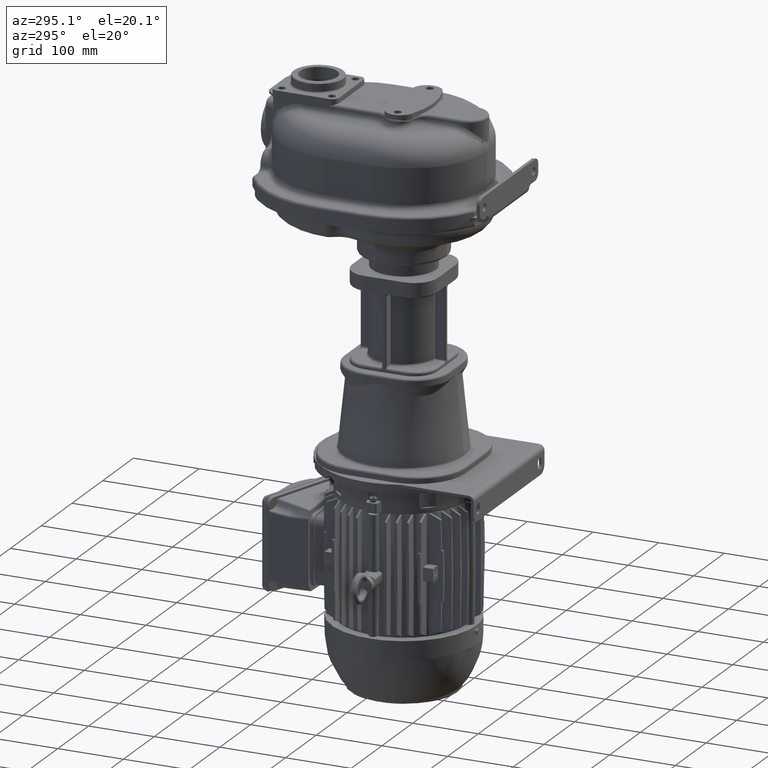
[diagram: clean part render]
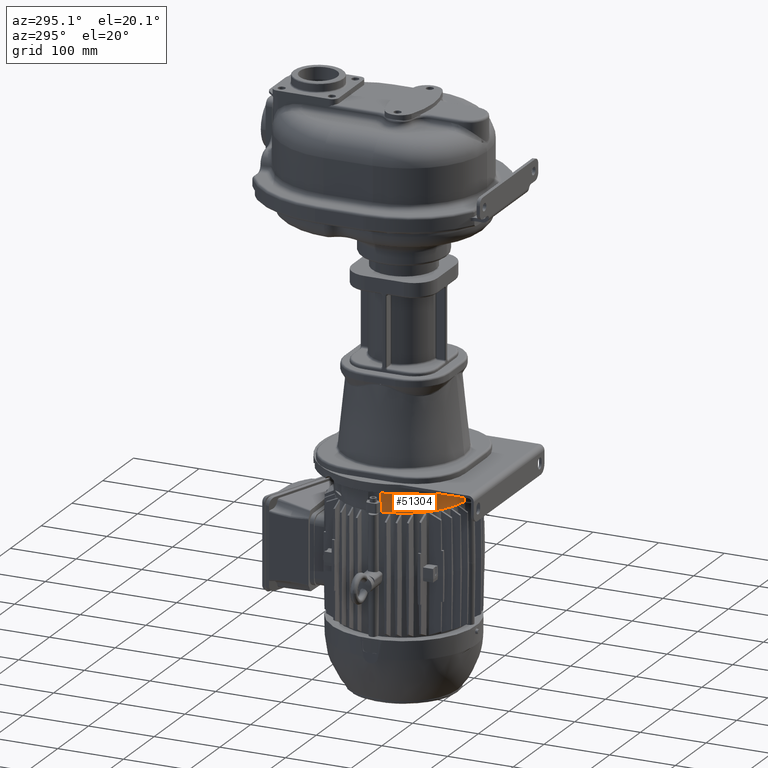
[diagram: same view with one face highlighted and labeled with its STEP entity id]
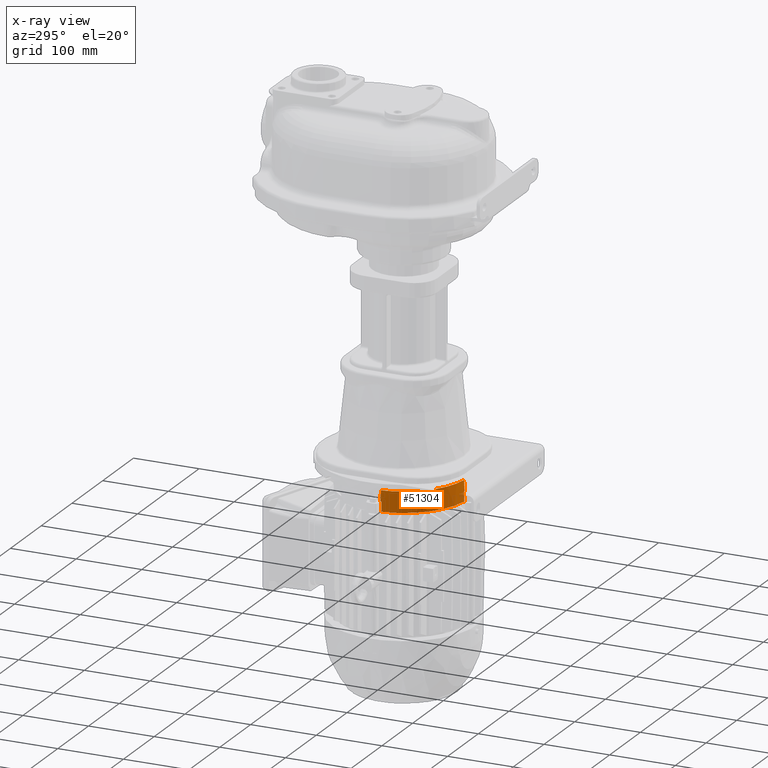
[diagram: x-ray of the same camera — body ghosted, the highlighted face saturated]
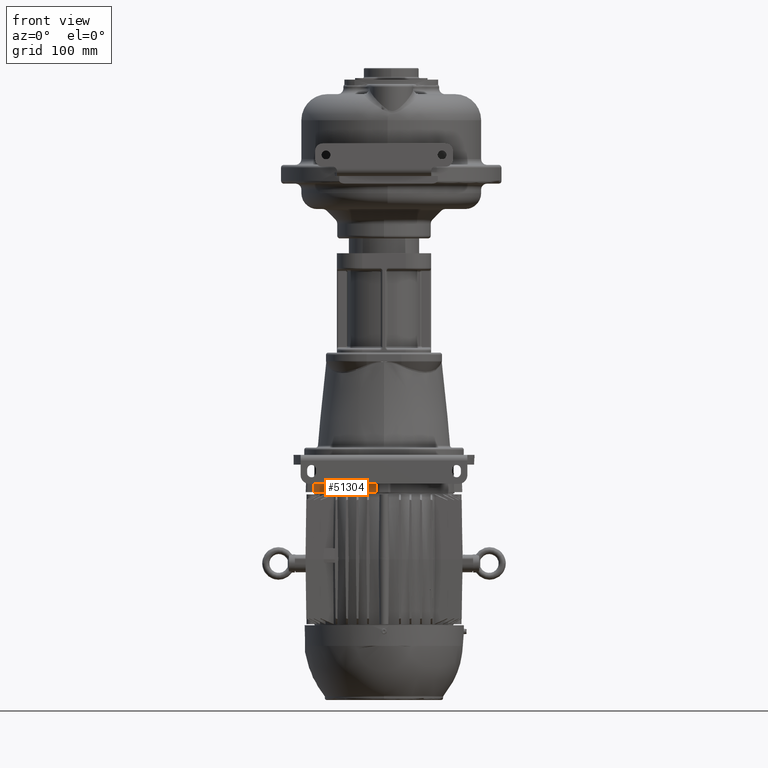
[diagram: same view with one face highlighted and labeled with its STEP entity id]
A machine part, auxiliary view. The second image highlights one B-rep face of the part: STEP entity #51304.
The next image is the same camera in x-ray: the body ghosted, the highlighted face saturated — about 1% of this face is hidden behind the body in this view.
A second angle (front view) of the same face is appended — the face is thin or edge-on in the first view.
In plain terms, the highlighted conical surface has half-angle 2 deg.
Its self-contained STEP definition (entity closure, byte-faithful):
#4994=CARTESIAN_POINT('',(-5.893369132108E1,8.369046011874E1,-4.34E2));
#4995=CARTESIAN_POINT('',(-5.901781148508E1,8.362805024004E1,
-4.368868614281E2));
#4996=CARTESIAN_POINT('',(-5.918511684592E1,8.350416939343E1,
-4.426236660805E2));
#4997=CARTESIAN_POINT('',(-5.943033284510E1,8.332329628055E1,
-4.510182601169E2));
#4998=CARTESIAN_POINT('',(-5.959581330015E1,8.320170700081E1,
-4.566739640893E2));
#4999=CARTESIAN_POINT('',(-5.967857013990E1,8.314102115272E1,-4.595E2));
#5001=CARTESIAN_POINT('',(0.E0,1.6E2,-4.34E2));
#5002=DIRECTION('',(0.E0,0.E0,-1.E0));
#5003=DIRECTION('',(-9.916516912608E-2,-9.950709870317E-1,0.E0));
#5004=AXIS2_PLACEMENT_3D('',#5001,#5002,#5003);
#5006=CARTESIAN_POINT('',(-9.376115186848E0,6.346059675055E1,-4.505E2));
#5007=CARTESIAN_POINT('',(-9.396501921736E0,6.352525982065E1,
-4.487133983074E2));
#5008=CARTESIAN_POINT('',(-9.437405277568E0,6.365571303007E1,
-4.451090546779E2));
#5009=CARTESIAN_POINT('',(-9.499115388688E0,6.385473258663E1,
-4.396102641616E2));
#5010=CARTESIAN_POINT('',(-9.540503278169E0,6.398972172740E1,
-4.358805954802E2));
#5011=CARTESIAN_POINT('',(-9.561253345400E0,6.405778674596E1,-4.34E2));
#5013=CARTESIAN_POINT('',(-1.089766451308E1,6.311093504342E1,-4.65E2));
#5014=CARTESIAN_POINT('',(-1.085308072980E1,6.316275254568E1,
-4.633827394132E2));
#5015=CARTESIAN_POINT('',(-1.076403887556E1,6.326630354086E1,
-4.601523181492E2));
#5016=CARTESIAN_POINT('',(-1.063085365457E1,6.342137680403E1,
-4.553190065989E2));
#5017=CARTESIAN_POINT('',(-1.054231398047E1,6.352459112379E1,
-4.521049711931E2));
#5018=CARTESIAN_POINT('',(-1.049810683230E1,6.357615611948E1,-4.505E2));
#5020=CARTESIAN_POINT('',(-9.642384388052E1,1.495018931677E2,-4.505E2));
#5021=CARTESIAN_POINT('',(-9.647540887644E1,1.494576860193E2,
-4.521049712003E2));
#5022=CARTESIAN_POINT('',(-9.657862319650E1,1.493691463450E2,
-4.553190066156E2));
#5023=CARTESIAN_POINT('',(-9.673369645968E1,1.492359611240E2,
-4.601523181659E2));
#5024=CARTESIAN_POINT('',(-9.683724745455E1,1.491469192700E2,
-4.633827394204E2));
#5025=CARTESIAN_POINT('',(-9.688906495658E1,1.491023354869E2,-4.65E2));
#5027=CARTESIAN_POINT('',(-9.594221325404E1,1.504387466546E2,-4.34E2));
#5028=CARTESIAN_POINT('',(-9.601027827812E1,1.504594967235E2,
-4.358805956328E2));
#5029=CARTESIAN_POINT('',(-9.614526742626E1,1.505008846153E2,
-4.396102645177E2));
#5030=CARTESIAN_POINT('',(-9.634428698271E1,1.505625947264E2,
-4.451090550311E2));
#5031=CARTESIAN_POINT('',(-9.647474018483E1,1.506034980800E2,
-4.487133984587E2));
#5032=CARTESIAN_POINT('',(-9.653940324945E1,1.506238848132E2,-4.505E2));
#5034=CARTESIAN_POINT('',(0.E0,1.6E2,-4.34E2));
#5035=DIRECTION('',(0.E0,0.E0,-1.E0));
#5036=DIRECTION('',(-7.914494214191E-1,-6.112346630676E-1,0.E0));
#5037=AXIS2_PLACEMENT_3D('',#5034,#5035,#5036);
#5039=CARTESIAN_POINT('',(-7.685897884728E1,1.003214298601E2,-4.595E2));
#5040=CARTESIAN_POINT('',(-7.679829048979E1,1.004041901219E2,
-4.566738472307E2));
#5041=CARTESIAN_POINT('',(-7.667669797648E1,1.005696749452E2,
-4.510179934917E2));
#5042=CARTESIAN_POINT('',(-7.649583599919E1,1.008148758464E2,
-4.426239162961E2));
#5043=CARTESIAN_POINT('',(-7.637195213425E1,1.009821853147E2,
-4.368869712541E2));
#5044=CARTESIAN_POINT('',(-7.630953988126E1,1.010663086789E2,-4.34E2));
#5056=CARTESIAN_POINT('',(0.E0,1.6E2,-4.595E2));
#5057=DIRECTION('',(0.E0,0.E0,1.E0));
#5058=DIRECTION('',(-7.898531424064E-1,-6.132960243069E-1,0.E0));
#5059=AXIS2_PLACEMENT_3D('',#5056,#5057,#5058);
#5574=CARTESIAN_POINT('',(0.E0,1.6E2,-4.505E2));
#5575=DIRECTION('',(0.E0,0.E0,-1.E0));
#5576=DIRECTION('',(-9.941253373942E-1,-1.082349922659E-1,0.E0));
#5577=AXIS2_PLACEMENT_3D('',#5574,#5575,#5576);
#5712=CARTESIAN_POINT('',(0.E0,1.6E2,-4.65E2));
#5713=DIRECTION('',(0.E0,0.E0,-1.E0));
#5714=DIRECTION('',(-1.117709180829E-1,-9.937339995547E-1,0.E0));
#5715=AXIS2_PLACEMENT_3D('',#5712,#5713,#5714);
#5853=CARTESIAN_POINT('',(0.E0,1.6E2,-4.505E2));
#5854=DIRECTION('',(0.E0,0.E0,-1.E0));
#5855=DIRECTION('',(-9.666731068222E-2,-9.953167491033E-1,0.E0));
#5856=AXIS2_PLACEMENT_3D('',#5853,#5854,#5855);
#42306=CARTESIAN_POINT('',(-7.630953988126E1,1.010663086789E2,-4.34E2));
#42307=CARTESIAN_POINT('',(-9.594221325404E1,1.504387466546E2,-4.34E2));
#42308=VERTEX_POINT('',#42306);
#42309=VERTEX_POINT('',#42307);
#42310=VERTEX_POINT('',#5039);
#42311=CARTESIAN_POINT('',(-5.967857013990E1,8.314102115272E1,-4.595E2));
#42312=VERTEX_POINT('',#42311);
#42313=VERTEX_POINT('',#4994);
#42326=CARTESIAN_POINT('',(-9.642384388052E1,1.495018931677E2,-4.505E2));
#42328=VERTEX_POINT('',#42326);
#42337=CARTESIAN_POINT('',(-9.653940324945E1,1.506238848132E2,-4.505E2));
#42338=VERTEX_POINT('',#42337);
#42346=CARTESIAN_POINT('',(-1.049810683230E1,6.357615611948E1,-4.505E2));
#42348=VERTEX_POINT('',#42346);
#42350=CARTESIAN_POINT('',(-9.376115186848E0,6.346059675055E1,-4.505E2));
#42351=VERTEX_POINT('',#42350);
#42370=CARTESIAN_POINT('',(-9.688906495658E1,1.491023354869E2,-4.65E2));
#42371=VERTEX_POINT('',#42370);
#42372=CARTESIAN_POINT('',(-1.089766451308E1,6.311093504342E1,-4.65E2));
#42373=VERTEX_POINT('',#42372);
#42401=CARTESIAN_POINT('',(-9.561253345400E0,6.405778674596E1,-4.34E2));
#42402=VERTEX_POINT('',#42401);
#51274=CARTESIAN_POINT('',(0.E0,1.6E2,-4.495E2));
#51275=DIRECTION('',(0.E0,0.E0,-1.E0));
#51276=DIRECTION('',(0.E0,1.E0,0.E0));
#51277=AXIS2_PLACEMENT_3D('',#51274,#51275,#51276);
#51278=CONICAL_SURFACE('',#51277,9.695872807288E1,2.E0);
#51280=ORIENTED_EDGE('',*,*,#51279,.F.);
#51282=ORIENTED_EDGE('',*,*,#51281,.F.);
#51284=ORIENTED_EDGE('',*,*,#51283,.F.);
#51286=ORIENTED_EDGE('',*,*,#51285,.T.);
#51288=ORIENTED_EDGE('',*,*,#51287,.F.);
#51290=ORIENTED_EDGE('',*,*,#51289,.T.);
#51292=ORIENTED_EDGE('',*,*,#51291,.F.);
#51294=ORIENTED_EDGE('',*,*,#51293,.T.);
#51296=ORIENTED_EDGE('',*,*,#51295,.F.);
#51297=ORIENTED_EDGE('',*,*,#51261,.F.);
#51299=ORIENTED_EDGE('',*,*,#51298,.F.);
#51301=ORIENTED_EDGE('',*,*,#51300,.T.);
#51302=EDGE_LOOP('',(#51280,#51282,#51284,#51286,#51288,#51290,#51292,#51294,
#51296,#51297,#51299,#51301));
#51303=FACE_OUTER_BOUND('',#51302,.F.);
#51304=ADVANCED_FACE('',(#51303),#51278,.T.);
#5000=B_SPLINE_CURVE_WITH_KNOTS('',3,(#4994,#4995,#4996,#4997,#4998,#4999),
.UNSPECIFIED.,.F.,.F.,(4,1,1,4),(0.E0,3.333333333333E-1,6.666666666667E-1,1.E0),
.UNSPECIFIED.);
#5005=CIRCLE('',#5004,9.641745614576E1);
#5012=B_SPLINE_CURVE_WITH_KNOTS('',3,(#5006,#5007,#5008,#5009,#5010,#5011),
.UNSPECIFIED.,.F.,.F.,(4,1,1,4),(0.E0,3.333333333333E-1,6.666666666667E-1,1.E0),
.UNSPECIFIED.);
#5019=B_SPLINE_CURVE_WITH_KNOTS('',3,(#5013,#5014,#5015,#5016,#5017,#5018),
.UNSPECIFIED.,.F.,.F.,(4,1,1,4),(0.E0,3.333333333333E-1,6.666666666667E-1,1.E0),
.UNSPECIFIED.);
#5026=B_SPLINE_CURVE_WITH_KNOTS('',3,(#5020,#5021,#5022,#5023,#5024,#5025),
.UNSPECIFIED.,.F.,.F.,(4,1,1,4),(0.E0,3.333333333333E-1,6.666666666667E-1,1.E0),
.UNSPECIFIED.);
#5033=B_SPLINE_CURVE_WITH_KNOTS('',3,(#5027,#5028,#5029,#5030,#5031,#5032),
.UNSPECIFIED.,.F.,.F.,(4,1,1,4),(0.E0,3.333333333333E-1,6.666666666667E-1,1.E0),
.UNSPECIFIED.);
#5038=CIRCLE('',#5037,9.641745614576E1);
#5045=B_SPLINE_CURVE_WITH_KNOTS('',3,(#5039,#5040,#5041,#5042,#5043,#5044),
.UNSPECIFIED.,.F.,.F.,(4,1,1,4),(0.E0,3.333333333333E-1,6.666666666667E-1,1.E0),
.UNSPECIFIED.);
#5060=CIRCLE('',#5059,9.730793576780E1);
#5578=CIRCLE('',#5577,9.699364884237E1);
#5716=CIRCLE('',#5715,9.75E1);
#5857=CIRCLE('',#5856,9.699364884237E1);
#51261=EDGE_CURVE('',#42308,#42309,#5038,.T.);
#51279=EDGE_CURVE('',#42313,#42312,#5000,.T.);
#51281=EDGE_CURVE('',#42402,#42313,#5005,.T.);
#51283=EDGE_CURVE('',#42351,#42402,#5012,.T.);
#51285=EDGE_CURVE('',#42351,#42348,#5857,.T.);
#51287=EDGE_CURVE('',#42373,#42348,#5019,.T.);
#51289=EDGE_CURVE('',#42373,#42371,#5716,.T.);
#51291=EDGE_CURVE('',#42328,#42371,#5026,.T.);
#51293=EDGE_CURVE('',#42328,#42338,#5578,.T.);
#51295=EDGE_CURVE('',#42309,#42338,#5033,.T.);
#51298=EDGE_CURVE('',#42310,#42308,#5045,.T.);
#51300=EDGE_CURVE('',#42310,#42312,#5060,.T.);